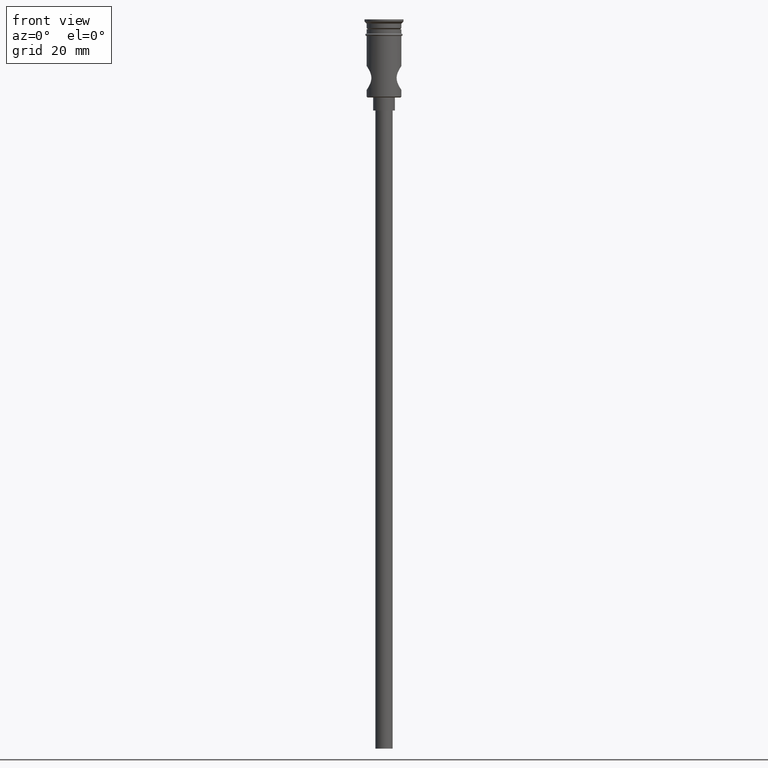
[diagram: clean part render]
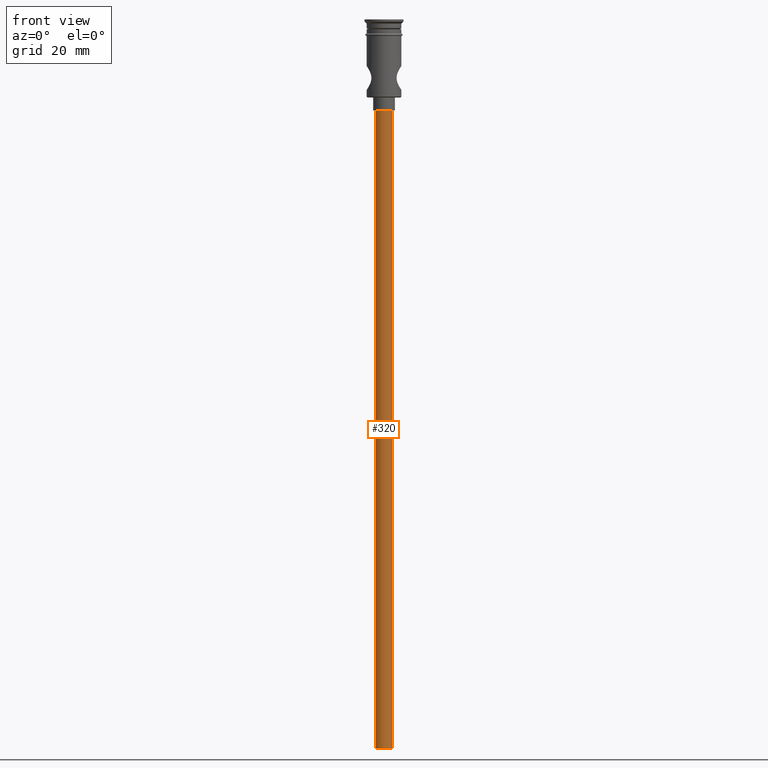
[diagram: same view with one face highlighted and labeled with its STEP entity id]
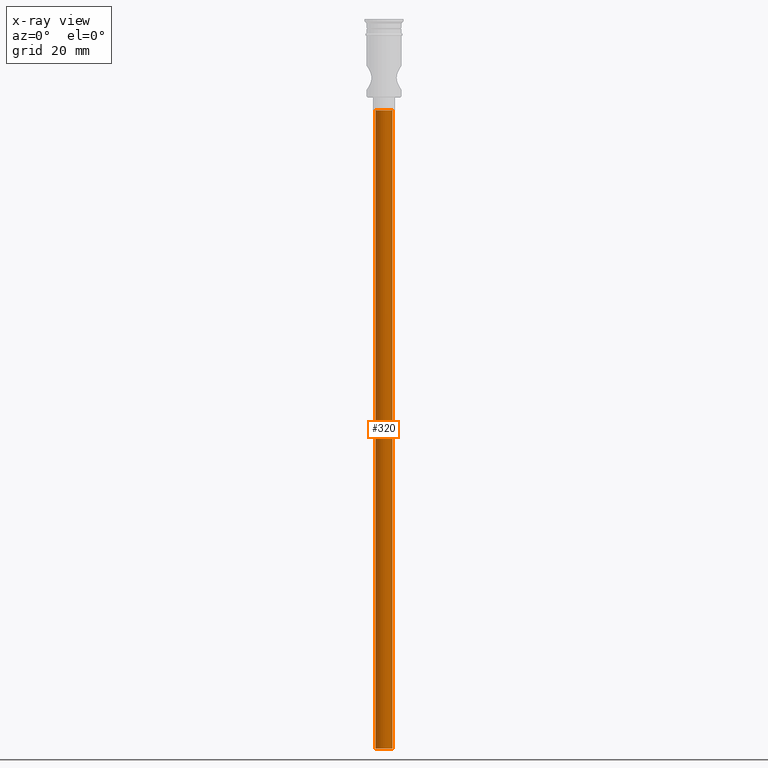
[diagram: x-ray of the same camera — body ghosted, the highlighted face saturated]
A machine part, front view. The second image highlights one B-rep face of the part: STEP entity #320.
The next image is the same camera in x-ray: the body ghosted, the highlighted face saturated — about 0% of this face is hidden behind the body in this view.
In plain terms, the highlighted cylindrical surface (edge-blend (fillet) strip) has radius 2 mm, axis along (-0, -0, 1).
Its self-contained STEP definition (entity closure, byte-faithful):
#3 = LINE ( 'NONE', #667, #1077 ) ;
#73 = VECTOR ( 'NONE', #421, 1000.000000000000000 ) ;
#83 = DIRECTION ( 'NONE',  ( -1.000000000000000000, 0.000000000000000000, 0.000000000000000000 ) ) ;
#94 = AXIS2_PLACEMENT_3D ( 'NONE', #158, #1170, #871 ) ;
#128 = ORIENTED_EDGE ( 'NONE', *, *, #398, .F. ) ;
#138 = VERTEX_POINT ( 'NONE', #833 ) ;
#158 = CARTESIAN_POINT ( 'NONE',  ( 0.000000000000000000, 0.000000000000000000, -167.9999999999999716 ) ) ;
#201 = ORIENTED_EDGE ( 'NONE', *, *, #246, .T. ) ;
#227 = LINE ( 'NONE', #1117, #73 ) ;
#233 = EDGE_CURVE ( 'NONE', #138, #280, #680, .T. ) ;
#235 = AXIS2_PLACEMENT_3D ( 'NONE', #1413, #1074, #83 ) ;
#246 = EDGE_CURVE ( 'NONE', #800, #1217, #1036, .T. ) ;
#280 = VERTEX_POINT ( 'NONE', #733 ) ;
#320 = ADVANCED_FACE ( 'NONE', ( #403 ), #961, .T. ) ;
#398 = EDGE_CURVE ( 'NONE', #280, #1217, #3, .T. ) ;
#403 = FACE_OUTER_BOUND ( 'NONE', #1315, .T. ) ;
#421 = DIRECTION ( 'NONE',  ( -0.000000000000000000, -0.000000000000000000, 1.000000000000000000 ) ) ;
#460 = ORIENTED_EDGE ( 'NONE', *, *, #233, .F. ) ;
#636 = DIRECTION ( 'NONE',  ( 1.000000000000000000, 0.000000000000000000, 0.000000000000000000 ) ) ;
#667 = CARTESIAN_POINT ( 'NONE',  ( -2.000000000000000000, 2.449293598294706414E-16, -167.9999999999999716 ) ) ;
#680 = CIRCLE ( 'NONE', #94, 2.000000000000000000 ) ;
#733 = CARTESIAN_POINT ( 'NONE',  ( -2.000000000000000000, 2.449293598294706414E-16, -167.9999999999999716 ) ) ;
#800 = VERTEX_POINT ( 'NONE', #1421 ) ;
#833 = CARTESIAN_POINT ( 'NONE',  ( 2.000000000000000000, 0.000000000000000000, -167.9999999999999716 ) ) ;
#852 = CARTESIAN_POINT ( 'NONE',  ( 0.000000000000000000, 0.000000000000000000, -167.9999999999999716 ) ) ;
#871 = DIRECTION ( 'NONE',  ( -1.000000000000000000, 0.000000000000000000, 0.000000000000000000 ) ) ;
#961 = CYLINDRICAL_SURFACE ( 'NONE', #1143, 2.000000000000000000 ) ;
#1036 = CIRCLE ( 'NONE', #235, 2.000000000000000000 ) ;
#1046 = ORIENTED_EDGE ( 'NONE', *, *, #1245, .T. ) ;
#1074 = DIRECTION ( 'NONE',  ( 0.000000000000000000, 0.000000000000000000, -1.000000000000000000 ) ) ;
#1077 = VECTOR ( 'NONE', #1335, 1000.000000000000000 ) ;
#1117 = CARTESIAN_POINT ( 'NONE',  ( 2.000000000000000000, 0.000000000000000000, -167.9999999999999716 ) ) ;
#1143 = AXIS2_PLACEMENT_3D ( 'NONE', #852, #1283, #636 ) ;
#1170 = DIRECTION ( 'NONE',  ( 0.000000000000000000, 0.000000000000000000, -1.000000000000000000 ) ) ;
#1217 = VERTEX_POINT ( 'NONE', #1326 ) ;
#1245 = EDGE_CURVE ( 'NONE', #138, #800, #227, .T. ) ;
#1283 = DIRECTION ( 'NONE',  ( -0.000000000000000000, -0.000000000000000000, 1.000000000000000000 ) ) ;
#1315 = EDGE_LOOP ( 'NONE', ( #128, #460, #1046, #201 ) ) ;
#1326 = CARTESIAN_POINT ( 'NONE',  ( -2.000000000000000000, 2.449293598294706414E-16, -20.99999999999999645 ) ) ;
#1335 = DIRECTION ( 'NONE',  ( -0.000000000000000000, -0.000000000000000000, 1.000000000000000000 ) ) ;
#1413 = CARTESIAN_POINT ( 'NONE',  ( 0.000000000000000000, 0.000000000000000000, -20.99999999999999645 ) ) ;
#1421 = CARTESIAN_POINT ( 'NONE',  ( 2.000000000000000000, 0.000000000000000000, -20.99999999999999645 ) ) ;